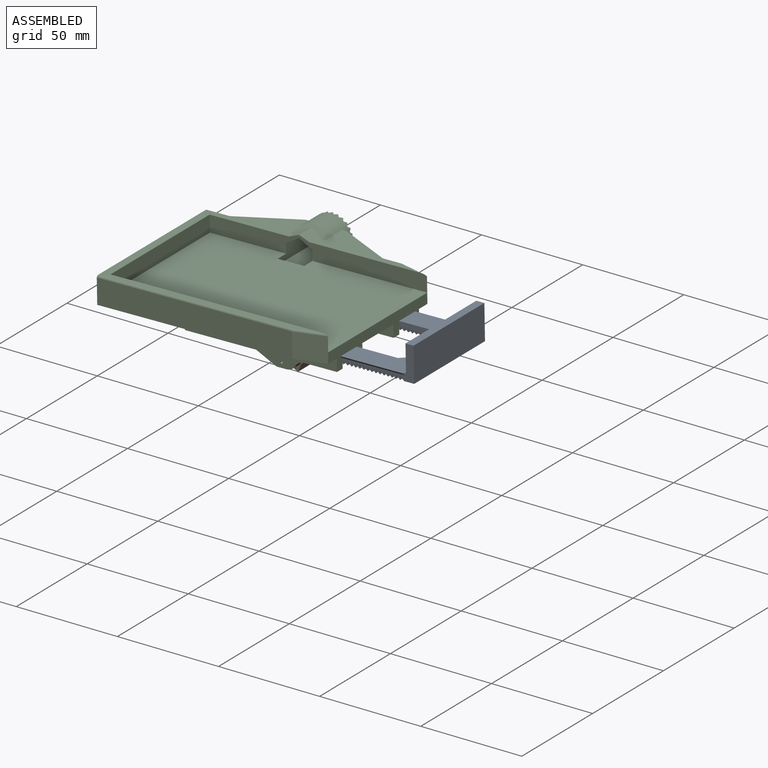
[diagram: assembled view]
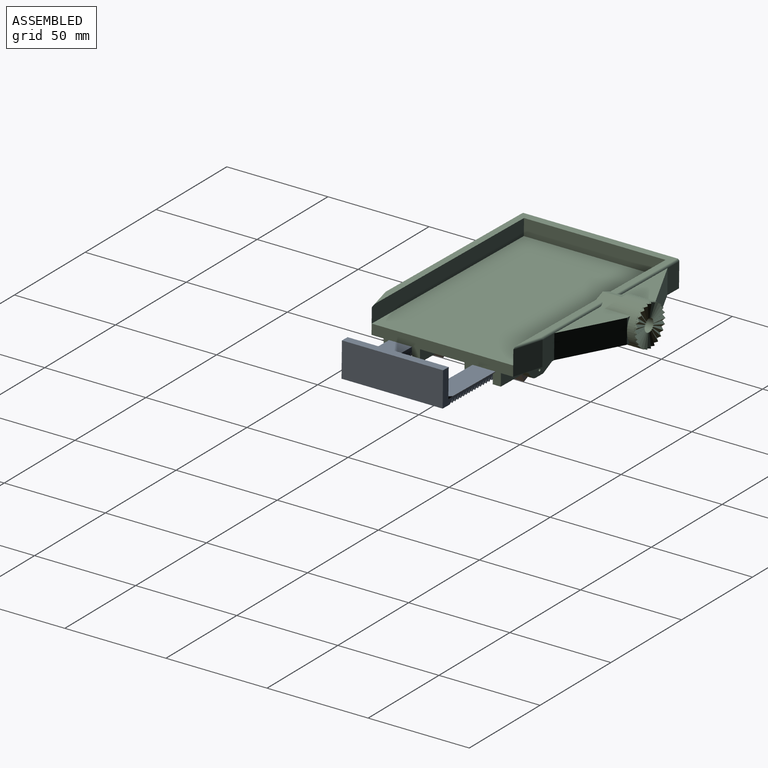
[diagram: assembled view, second angle]
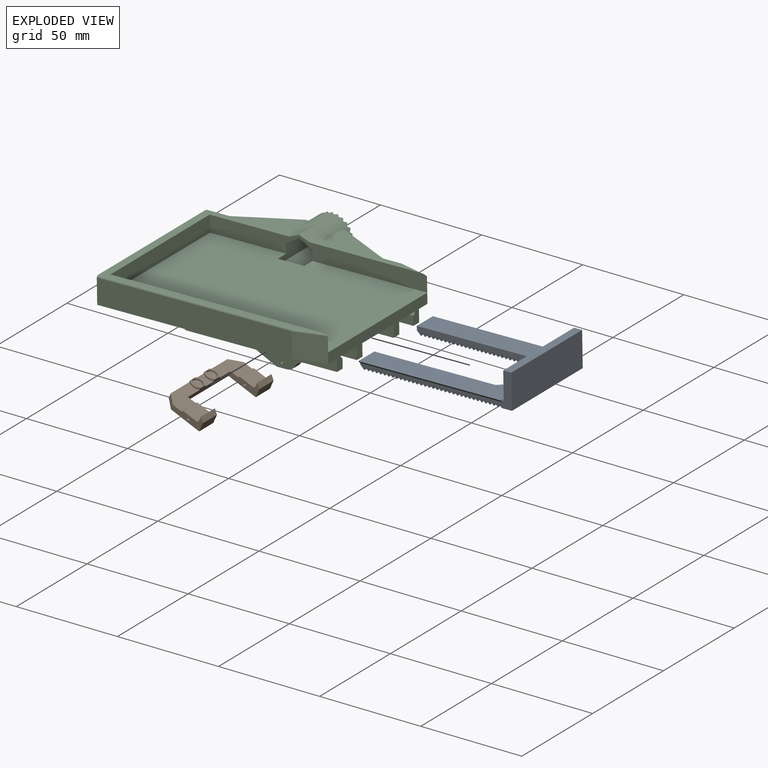
[diagram: exploded view]
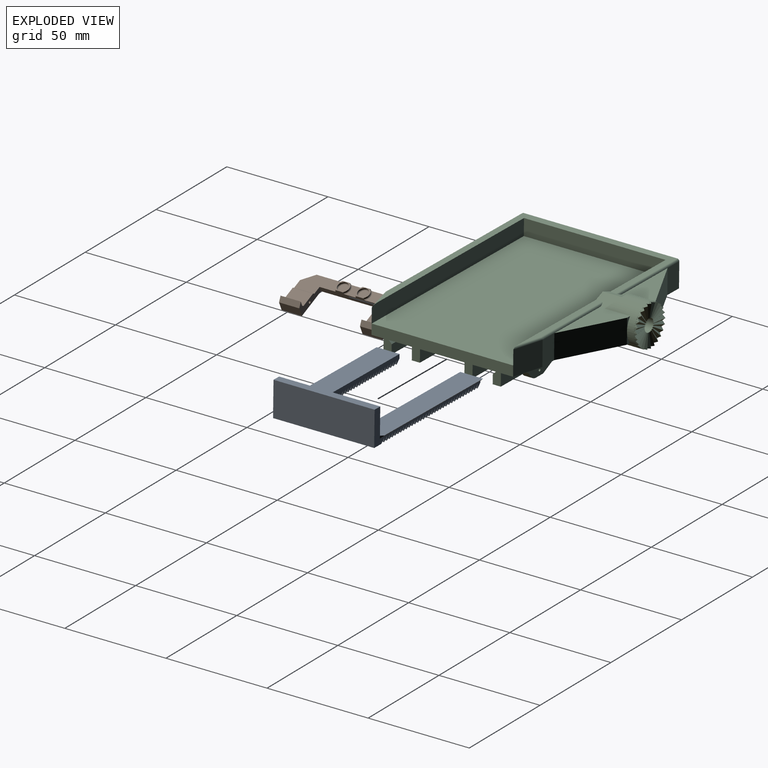
[diagram: exploded view, second angle]
ASSEMBLY  parts=3 mates=2
PART A: 156 faces, bbox 75x52.6x17 mm
  f0: plane 71x21.3mm, normal (0,0,1), area 856.5mm2, adj f1,f3,f10,f11,f13,f155
  f1: plane 71x1.3mm, normal (0,-0.71,-0.71), area 129.3mm2, adj f0,f3,f6,f155
  f2: plane 71x21.3mm, normal (0,0,1), area 856.5mm2, adj f5,f8,f9,f13,f153,f154
  f3: plane 11.3x2mm, normal (-1,0,0), area 20.8mm2, adj f0,f1,f6,f11,f146
  f4: plane 50x5mm, normal (0,0,-1), area 239.1mm2, adj f6,f7,f9,f10,f12,f13,f148,f149
  f5: plane 11.3x2mm, normal (-1,0,0), area 20.8mm2, adj f2,f7,f8,f151,f153
  f6: plane 75x17mm, normal (0,-1,0), area 189.7mm2, adj f1,f3,f4,f12,f13,f14,f15,f16
  f7: plane 75x17mm, normal (0,1,0), area 189.7mm2, adj f4,f5,f12,f13,f48,f49,f50,f51
  f8: plane 60x4mm, normal (0,-1,0), area 180mm2, adj f2,f5,f9,f52,f53,f54,f55,f56
  f9: plane 11x10mm, normal (-0.67,-0.74,0), area 45.9mm2, adj f2,f4,f8,f13,f48,f49,f50,f51
  f10: plane 11x10mm, normal (-0.67,0.74,0), area 45.9mm2, adj f0,f4,f11,f13,f44,f45,f46,f47
  f11: plane 60x4mm, normal (0,1,0), area 180mm2, adj f0,f3,f10,f14,f15,f16,f17,f18
  f12: plane 50x17mm, normal (1,0,0), area 850mm2, adj f4,f6,f7,f152
  f13: plane 50x17mm, normal (-1,0,0), area 690mm2, adj f0,f2,f4,f6,f7,f9,f10,f152
  f14: plane 10x2mm, normal (1,0,0), area 20mm2, adj f6,f11,f15,f146
  f15: plane 10x2mm, normal (-0.71,0,-0.71), area 28.3mm2, adj f6,f11,f14,f142
  f16: plane 10x2mm, normal (1,0,0), area 20mm2, adj f6,f11,f17,f143
  f17: plane 10x2mm, normal (-0.71,0,-0.71), area 28.3mm2, adj f6,f11,f16,f138
  f18: plane 10x2mm, normal (1,0,0), area 20mm2, adj f6,f11,f19,f139
  f19: plane 10x2mm, normal (-0.71,0,-0.71), area 28.3mm2, adj f6,f11,f18,f134
  f20: plane 10x2mm, normal (1,0,0), area 20mm2, adj f6,f11,f21,f135
  f21: plane 10x2mm, normal (-0.71,0,-0.71), area 28.3mm2, adj f6,f11,f20,f130
  f22: plane 10x2mm, normal (1,0,0), area 20mm2, adj f6,f11,f23,f131
  f23: plane 10x2mm, normal (-0.71,0,-0.71), area 28.3mm2, adj f6,f11,f22,f126
  f24: plane 10x2mm, normal (1,0,0), area 20mm2, adj f6,f11,f25,f127
  f25: plane 10x2mm, normal (-0.71,0,-0.71), area 28.3mm2, adj f6,f11,f24,f122
  f26: plane 10x2mm, normal (1,0,0), area 20mm2, adj f6,f11,f27,f123
  f27: plane 10x2mm, normal (-0.71,0,-0.71), area 28.3mm2, adj f6,f11,f26,f118
  f28: plane 10x2mm, normal (1,0,0), area 20mm2, adj f6,f11,f29,f119
  f29: plane 10x2mm, normal (-0.71,0,-0.71), area 28.3mm2, adj f6,f11,f28,f114
  f30: plane 10x2mm, normal (1,0,0), area 20mm2, adj f6,f11,f31,f115
  f31: plane 10x2mm, normal (-0.71,0,-0.71), area 28.3mm2, adj f6,f11,f30,f110
  f32: plane 10x2mm, normal (1,0,0), area 20mm2, adj f6,f11,f33,f111
  f33: plane 10x2mm, normal (-0.71,0,-0.71), area 28.3mm2, adj f6,f11,f32,f106
  f34: plane 10x2mm, normal (1,0,0), area 20mm2, adj f6,f11,f35,f107
  f35: plane 10x2mm, normal (-0.71,0,-0.71), area 28.3mm2, adj f6,f11,f34,f102
  f36: plane 10x2mm, normal (1,0,0), area 20mm2, adj f6,f11,f37,f103
  f37: plane 10x2mm, normal (-0.71,0,-0.71), area 28.3mm2, adj f6,f11,f36,f98
  f38: plane 10x2mm, normal (1,0,0), area 20mm2, adj f6,f11,f39,f99
  f39: plane 10x2mm, normal (-0.71,0,-0.71), area 28.3mm2, adj f6,f11,f38,f94
  f40: plane 10x2mm, normal (1,0,0), area 20mm2, adj f6,f11,f41,f95
  f41: plane 10x2mm, normal (-0.71,0,-0.71), area 28.3mm2, adj f6,f11,f40,f90
  f42: plane 10x2mm, normal (1,0,0), area 20mm2, adj f6,f11,f43,f91
  f43: plane 10x2mm, normal (-0.71,0,-0.71), area 28.3mm2, adj f6,f11,f42,f86
  f44: plane 11.82x2mm, normal (1,0,0), area 23.6mm2, adj f6,f10,f45,f87
  f45: plane 13.64x2mm, normal (-0.71,0,-0.71), area 36mm2, adj f6,f10,f44,f82
  f46: plane 15.45x2mm, normal (1,0,0), area 30.9mm2, adj f6,f10,f47,f83
  f47: plane 17.27x2mm, normal (-0.71,0,-0.71), area 46.3mm2, adj f6,f10,f46,f147
  f48: plane 13.64x2mm, normal (-0.71,0,-0.71), area 36mm2, adj f7,f9,f49,f85
  f49: plane 11.82x2mm, normal (1,0,0), area 23.6mm2, adj f7,f9,f48,f88
  f50: plane 17.27x2mm, normal (-0.71,0,-0.71), area 46.3mm2, adj f7,f9,f51,f150
  f51: plane 15.45x2mm, normal (1,0,0), area 30.9mm2, adj f7,f9,f50,f84
  f52: plane 10x2mm, normal (-0.71,0,-0.71), area 28.3mm2, adj f7,f8,f53,f145
  f53: plane 10x2mm, normal (1,0,0), area 20mm2, adj f7,f8,f52,f151
  f54: plane 10x2mm, normal (-0.71,0,-0.71), area 28.3mm2, adj f7,f8,f55,f141
  f55: plane 10x2mm, normal (1,0,0), area 20mm2, adj f7,f8,f54,f144
  f56: plane 10x2mm, normal (-0.71,0,-0.71), area 28.3mm2, adj f7,f8,f57,f137
  f57: plane 10x2mm, normal (1,0,0), area 20mm2, adj f7,f8,f56,f140
  f58: plane 10x2mm, normal (-0.71,0,-0.71), area 28.3mm2, adj f7,f8,f59,f133
  f59: plane 10x2mm, normal (1,0,0), area 20mm2, adj f7,f8,f58,f136
  f60: plane 10x2mm, normal (-0.71,0,-0.71), area 28.3mm2, adj f7,f8,f61,f129
  f61: plane 10x2mm, normal (1,0,0), area 20mm2, adj f7,f8,f60,f132
  f62: plane 10x2mm, normal (-0.71,0,-0.71), area 28.3mm2, adj f7,f8,f63,f125
  f63: plane 10x2mm, normal (1,0,0), area 20mm2, adj f7,f8,f62,f128
  f64: plane 10x2mm, normal (-0.71,0,-0.71), area 28.3mm2, adj f7,f8,f65,f121
  f65: plane 10x2mm, normal (1,0,0), area 20mm2, adj f7,f8,f64,f124
  f66: plane 10x2mm, normal (-0.71,0,-0.71), area 28.3mm2, adj f7,f8,f67,f117
  f67: plane 10x2mm, normal (1,0,0), area 20mm2, adj f7,f8,f66,f120
  f68: plane 10x2mm, normal (-0.71,0,-0.71), area 28.3mm2, adj f7,f8,f69,f113
  f69: plane 10x2mm, normal (1,0,0), area 20mm2, adj f7,f8,f68,f116
  f70: plane 10x2mm, normal (-0.71,0,-0.71), area 28.3mm2, adj f7,f8,f71,f109
  f71: plane 10x2mm, normal (1,0,0), area 20mm2, adj f7,f8,f70,f112
  f72: plane 10x2mm, normal (-0.71,0,-0.71), area 28.3mm2, adj f7,f8,f73,f105
  f73: plane 10x2mm, normal (1,0,0), area 20mm2, adj f7,f8,f72,f108
  f74: plane 10x2mm, normal (-0.71,0,-0.71), area 28.3mm2, adj f7,f8,f75,f101
  f75: plane 10x2mm, normal (1,0,0), area 20mm2, adj f7,f8,f74,f104
  f76: plane 10x2mm, normal (-0.71,0,-0.71), area 28.3mm2, adj f7,f8,f77,f97
  f77: plane 10x2mm, normal (1,0,0), area 20mm2, adj f7,f8,f76,f100
  f78: plane 10x2mm, normal (-0.71,0,-0.71), area 28.3mm2, adj f7,f8,f79,f93
  f79: plane 10x2mm, normal (1,0,0), area 20mm2, adj f7,f8,f78,f96
  f80: plane 10x2mm, normal (-0.71,0,-0.71), area 28.3mm2, adj f7,f8,f81,f89
  f81: plane 10x2mm, normal (1,0,0), area 20mm2, adj f7,f8,f80,f92
  f82: plane 13.64x2mm, normal (1,0,0), area 27.3mm2, adj f6,f10,f45,f83
  f83: plane 15.45x2mm, normal (-0.71,0,-0.71), area 41.1mm2, adj f6,f10,f46,f82
  f84: plane 15.45x2mm, normal (-0.71,0,-0.71), area 41.1mm2, adj f7,f9,f51,f85
  f85: plane 13.64x2mm, normal (1,0,0), area 27.3mm2, adj f7,f9,f48,f84
  f86: plane 10x2mm, normal (1,0,0), area 20mm2, adj f6,f11,f43,f87
  f87: plane 11.82x2mm, normal (-0.71,0,-0.71), area 30.9mm2, adj f6,f10,f44,f86
  f88: plane 11.82x2mm, normal (-0.71,0,-0.71), area 30.9mm2, adj f7,f9,f49,f89
  f89: plane 10x2mm, normal (1,0,0), area 20mm2, adj f7,f8,f80,f88
  f90: plane 10x2mm, normal (1,0,0), area 20mm2, adj f6,f11,f41,f91
  f91: plane 10x2mm, normal (-0.71,0,-0.71), area 28.3mm2, adj f6,f11,f42,f90
  f92: plane 10x2mm, normal (-0.71,0,-0.71), area 28.3mm2, adj f7,f8,f81,f93
  f93: plane 10x2mm, normal (1,0,0), area 20mm2, adj f7,f8,f78,f92
  f94: plane 10x2mm, normal (1,0,0), area 20mm2, adj f6,f11,f39,f95
  f95: plane 10x2mm, normal (-0.71,0,-0.71), area 28.3mm2, adj f6,f11,f40,f94
  f96: plane 10x2mm, normal (-0.71,0,-0.71), area 28.3mm2, adj f7,f8,f79,f97
  f97: plane 10x2mm, normal (1,0,0), area 20mm2, adj f7,f8,f76,f96
  f98: plane 10x2mm, normal (1,0,0), area 20mm2, adj f6,f11,f37,f99
  f99: plane 10x2mm, normal (-0.71,0,-0.71), area 28.3mm2, adj f6,f11,f38,f98
  f100: plane 10x2mm, normal (-0.71,0,-0.71), area 28.3mm2, adj f7,f8,f77,f101
  f101: plane 10x2mm, normal (1,0,0), area 20mm2, adj f7,f8,f74,f100
  f102: plane 10x2mm, normal (1,0,0), area 20mm2, adj f6,f11,f35,f103
  f103: plane 10x2mm, normal (-0.71,0,-0.71), area 28.3mm2, adj f6,f11,f36,f102
  f104: plane 10x2mm, normal (-0.71,0,-0.71), area 28.3mm2, adj f7,f8,f75,f105
  f105: plane 10x2mm, normal (1,0,0), area 20mm2, adj f7,f8,f72,f104
  f106: plane 10x2mm, normal (1,0,0), area 20mm2, adj f6,f11,f33,f107
  f107: plane 10x2mm, normal (-0.71,0,-0.71), area 28.3mm2, adj f6,f11,f34,f106
  f108: plane 10x2mm, normal (-0.71,0,-0.71), area 28.3mm2, adj f7,f8,f73,f109
  f109: plane 10x2mm, normal (1,0,0), area 20mm2, adj f7,f8,f70,f108
  f110: plane 10x2mm, normal (1,0,0), area 20mm2, adj f6,f11,f31,f111
  f111: plane 10x2mm, normal (-0.71,0,-0.71), area 28.3mm2, adj f6,f11,f32,f110
  f112: plane 10x2mm, normal (-0.71,0,-0.71), area 28.3mm2, adj f7,f8,f71,f113
  f113: plane 10x2mm, normal (1,0,0), area 20mm2, adj f7,f8,f68,f112
  f114: plane 10x2mm, normal (1,0,0), area 20mm2, adj f6,f11,f29,f115
  f115: plane 10x2mm, normal (-0.71,0,-0.71), area 28.3mm2, adj f6,f11,f30,f114
  f116: plane 10x2mm, normal (-0.71,0,-0.71), area 28.3mm2, adj f7,f8,f69,f117
  f117: plane 10x2mm, normal (1,0,0), area 20mm2, adj f7,f8,f66,f116
  f118: plane 10x2mm, normal (1,0,0), area 20mm2, adj f6,f11,f27,f119
  f119: plane 10x2mm, normal (-0.71,0,-0.71), area 28.3mm2, adj f6,f11,f28,f118
  f120: plane 10x2mm, normal (-0.71,0,-0.71), area 28.3mm2, adj f7,f8,f67,f121
  f121: plane 10x2mm, normal (1,0,0), area 20mm2, adj f7,f8,f64,f120
  f122: plane 10x2mm, normal (1,0,0), area 20mm2, adj f6,f11,f25,f123
  f123: plane 10x2mm, normal (-0.71,0,-0.71), area 28.3mm2, adj f6,f11,f26,f122
  f124: plane 10x2mm, normal (-0.71,0,-0.71), area 28.3mm2, adj f7,f8,f65,f125
  f125: plane 10x2mm, normal (1,0,0), area 20mm2, adj f7,f8,f62,f124
  f126: plane 10x2mm, normal (1,0,0), area 20mm2, adj f6,f11,f23,f127
  f127: plane 10x2mm, normal (-0.71,0,-0.71), area 28.3mm2, adj f6,f11,f24,f126
  f128: plane 10x2mm, normal (-0.71,0,-0.71), area 28.3mm2, adj f7,f8,f63,f129
  f129: plane 10x2mm, normal (1,0,0), area 20mm2, adj f7,f8,f60,f128
  f130: plane 10x2mm, normal (1,0,0), area 20mm2, adj f6,f11,f21,f131
  f131: plane 10x2mm, normal (-0.71,0,-0.71), area 28.3mm2, adj f6,f11,f22,f130
  f132: plane 10x2mm, normal (-0.71,0,-0.71), area 28.3mm2, adj f7,f8,f61,f133
  f133: plane 10x2mm, normal (1,0,0), area 20mm2, adj f7,f8,f58,f132
  f134: plane 10x2mm, normal (1,0,0), area 20mm2, adj f6,f11,f19,f135
  f135: plane 10x2mm, normal (-0.71,0,-0.71), area 28.3mm2, adj f6,f11,f20,f134
  f136: plane 10x2mm, normal (-0.71,0,-0.71), area 28.3mm2, adj f7,f8,f59,f137
  f137: plane 10x2mm, normal (1,0,0), area 20mm2, adj f7,f8,f56,f136
  f138: plane 10x2mm, normal (1,0,0), area 20mm2, adj f6,f11,f17,f139
  f139: plane 10x2mm, normal (-0.71,0,-0.71), area 28.3mm2, adj f6,f11,f18,f138
  f140: plane 10x2mm, normal (-0.71,0,-0.71), area 28.3mm2, adj f7,f8,f57,f141
  f141: plane 10x2mm, normal (1,0,0), area 20mm2, adj f7,f8,f54,f140
  f142: plane 10x2mm, normal (1,0,0), area 20mm2, adj f6,f11,f15,f143
  f143: plane 10x2mm, normal (-0.71,0,-0.71), area 28.3mm2, adj f6,f11,f16,f142
  f144: plane 10x2mm, normal (-0.71,0,-0.71), area 28.3mm2, adj f7,f8,f55,f145
  f145: plane 10x2mm, normal (1,0,0), area 20mm2, adj f7,f8,f52,f144
  f146: plane 10x2mm, normal (-0.71,0,-0.71), area 28.3mm2, adj f3,f6,f11,f14
  f147: plane 17.27x2mm, normal (1,0,0), area 34.5mm2, adj f6,f10,f47,f148
  f148: plane 19.09x2mm, normal (-0.71,0,-0.71), area 51.4mm2, adj f4,f6,f10,f147
  f149: plane 19.09x2mm, normal (-0.71,0,-0.71), area 51.4mm2, adj f4,f7,f9,f150
  f150: plane 17.27x2mm, normal (1,0,0), area 34.5mm2, adj f7,f9,f50,f149
  f151: plane 10x2mm, normal (-0.71,0,-0.71), area 28.3mm2, adj f5,f7,f8,f53
  f152: plane 50x4mm, normal (0,0,1), area 200mm2, adj f6,f7,f12,f13
  f153: plane 71x1.3mm, normal (0,0.71,-0.71), area 129.3mm2, adj f2,f5,f7,f154
  f154: plane 1.3x1.3mm, normal (0.71,0.71,0), area 1.2mm2, adj f2,f7,f153
  f155: plane 1.3x1.3mm, normal (0.71,-0.71,0), area 1.2mm2, adj f0,f1,f6
PART B: 58 faces, bbox 50x20.3x6.5 mm
  f0: plane 17.75x9.5mm, normal (0,0,-1), area 120.8mm2, adj f2,f8,f13,f14,f42,f43,f44,f48
  f1: plane 17.75x9.5mm, normal (0,0,-1), area 120.8mm2, adj f3,f7,f13,f14,f36,f37,f38,f47
  f2: plane 14.75x6.5mm, normal (-1,0,0), area 48.2mm2, adj f0,f9,f10,f11,f13,f50,f54,f55
  f3: plane 14.75x6.5mm, normal (1,0,0), area 48.2mm2, adj f1,f4,f5,f6,f13,f49,f51,f52
  f4: plane 10x4.5mm, normal (0,-1,0), area 45mm2, adj f3,f6,f7,f57
  f5: plane 10x2.5mm, normal (0,1,0), area 25mm2, adj f3,f6,f7,f52
  f6: plane 10x2mm, normal (0,-0.71,-0.71), area 28.3mm2, adj f3,f4,f5,f7
  f7: plane 15.25x6.5mm, normal (-1,0,0), area 49.4mm2, adj f1,f4,f5,f6,f47,f49,f51,f52
  f8: plane 15.25x6.5mm, normal (1,0,0), area 49.4mm2, adj f0,f9,f10,f11,f48,f50,f54,f55
  f9: plane 10x4.5mm, normal (0,-1,0), area 45mm2, adj f2,f8,f11,f57
  f10: plane 10x2.5mm, normal (0,1,0), area 25mm2, adj f2,f8,f11,f55
  f11: plane 10x2mm, normal (0,-0.71,-0.71), area 28.3mm2, adj f2,f8,f9,f10
  f12: plane 5.5x5.5mm, normal (0,0,-1), area 21.5mm2, adj f13,f14,f33,f34,f35,f39,f40,f41
  f13: plane 30x3.5mm, normal (0,-1,0), area 83.1mm2, adj f0,f1,f2,f3,f12,f15,f20,f22
  f14: plane 40x3.5mm, normal (0,1,0), area 108.1mm2, adj f0,f1,f12,f17,f18,f22,f28,f29
  f15: plane 0.75x0.25mm, normal (-1,0,0), area 0.2mm2, adj f13,f16,f22,f38
  f16: cylinder r=3.2mm len=5mm, axis (0,0,1), area 4.3mm2, adj f15,f17,f22,f37
  f17: plane 0.75x0.25mm, normal (-1,0,0), area 0.2mm2, adj f14,f16,f22,f36
  f18: plane 0.75x0.25mm, normal (1,0,0), area 0.2mm2, adj f14,f19,f22,f33
  f19: cylinder r=3.2mm len=5mm, axis (0,0,1), area 4.3mm2, adj f18,f20,f22,f34
  f20: plane 0.75x0.25mm, normal (1,0,0), area 0.2mm2, adj f13,f19,f22,f35
  f21: cylinder r=2.5mm len=5mm, axis (0,0,1), area 11.8mm2, adj f22,f46
  f22: plane 6.4x5.5mm, normal (0,0,-1), area 10.7mm2, adj f13,f14,f15,f16,f17,f18,f19,f20
  f23: plane 4.5x4.5mm, normal (0,0,-1), area 15.9mm2, adj f46
  f24: cylinder r=3.2mm len=5mm, axis (0,0,1), area 4.3mm2, adj f25,f29,f31,f43
  f25: plane 0.75x0.25mm, normal (1,0,0), area 0.2mm2, adj f13,f24,f31,f44
  f26: plane 0.75x0.25mm, normal (-1,0,0), area 0.2mm2, adj f13,f27,f31,f41
  f27: cylinder r=3.2mm len=5mm, axis (0,0,1), area 4.3mm2, adj f26,f28,f31,f40
  f28: plane 0.75x0.25mm, normal (-1,0,0), area 0.2mm2, adj f14,f27,f31,f39
  f29: plane 0.75x0.25mm, normal (1,0,0), area 0.2mm2, adj f14,f24,f31,f42
  f30: cylinder r=2.5mm len=5mm, axis (0,0,1), area 11.8mm2, adj f31,f45
  f31: plane 6.4x5.5mm, normal (0,0,-1), area 10.7mm2, adj f13,f14,f24,f25,f26,f27,f28,f29
  f32: plane 4.5x4.5mm, normal (0,0,-1), area 15.9mm2, adj f45
  f33: plane 0.25x0.25mm, normal (0.71,0,-0.71), area 0.1mm2, adj f12,f14,f18,f34
  f34: cone r=3.45mm half-angle=45deg, axis (0,0,1), area 2.1mm2, adj f12,f19,f33,f35
  f35: plane 0.25x0.25mm, normal (0.71,0,-0.71), area 0.1mm2, adj f12,f13,f20,f34
  f36: plane 0.25x0.25mm, normal (-0.71,0,-0.71), area 0.1mm2, adj f1,f14,f17,f37
  f37: cone r=3.2mm half-angle=45deg, axis (0,0,1), area 2.1mm2, adj f1,f16,f36,f38
  f38: plane 0.25x0.25mm, normal (-0.71,0,-0.71), area 0.1mm2, adj f1,f13,f15,f37
  f39: plane 0.25x0.25mm, normal (-0.71,0,-0.71), area 0.1mm2, adj f12,f14,f28,f40
  f40: cone r=3.2mm half-angle=45deg, axis (0,0,1), area 2.1mm2, adj f12,f27,f39,f41
  f41: plane 0.25x0.25mm, normal (-0.71,0,-0.71), area 0.1mm2, adj f12,f13,f26,f40
  f42: plane 0.25x0.25mm, normal (0.71,0,-0.71), area 0.1mm2, adj f0,f14,f29,f43
  f43: cone r=3.45mm half-angle=45deg, axis (0,0,1), area 2.1mm2, adj f0,f24,f42,f44
  f44: plane 0.25x0.25mm, normal (0.71,0,-0.71), area 0.1mm2, adj f0,f13,f25,f43
  f45: cone r=2.25mm half-angle=45deg, axis (0,0,-1), area 5.3mm2, adj f30,f32
  f46: cone r=2.25mm half-angle=45deg, axis (0,0,-1), area 5.3mm2, adj f21,f23
  f47: plane 5x5mm, normal (-0.71,0.71,0), area 17.7mm2, adj f1,f7,f14,f57
  f48: plane 5x5mm, normal (0.71,0.71,0), area 17.7mm2, adj f0,f8,f14,f57
  f49: cylinder r=0.64mm len=10mm, axis (1,0,0), area 39.9mm2, adj f3,f7
  f50: cylinder r=0.64mm len=10mm, axis (-1,0,0), area 39.9mm2, adj f2,f8
  f51: plane 10x7.25mm, normal (0,0,-1), area 72.5mm2, adj f3,f7,f52,f53
  f52: plane 10x0.75mm, normal (0,0.71,-0.71), area 10.6mm2, adj f3,f5,f7,f51
  f53: plane 10x0.75mm, normal (0,0.71,-0.71), area 10.6mm2, adj f1,f3,f7,f51
  f54: plane 10x7.25mm, normal (0,0,-1), area 72.5mm2, adj f2,f8,f55,f56
  f55: plane 10x0.75mm, normal (0,0.71,-0.71), area 10.6mm2, adj f2,f8,f10,f54
  f56: plane 10x0.75mm, normal (0,0.71,-0.71), area 10.6mm2, adj f0,f2,f8,f54
  f57: plane 50x20.25mm, normal (0,0,1), area 545mm2, adj f2,f3,f4,f7,f8,f9,f13,f14
PART C: 189 faces, bbox 111.5x98x27 mm
  f0: plane 81x11mm, normal (0,-1,0), area 445.9mm2, adj f2,f7,f11,f14,f49,f162,f175,f182
  f1: plane 81x11mm, normal (0,1,0), area 445.9mm2, adj f3,f5,f14,f49,f57,f161,f176,f179
  f2: plane 4x4mm, normal (-0.71,0,-0.71), area 22.6mm2, adj f0,f4,f14,f162
  f3: plane 4x4mm, normal (-0.71,0,-0.71), area 22.6mm2, adj f1,f14,f56,f161
  f4: plane 81x11mm, normal (0,1,0), area 445.9mm2, adj f2,f7,f11,f14,f49,f162,f175,f182
  f5: plane 5x4mm, normal (0,0,-1), area 20mm2, adj f1,f56,f176,f183
  f6: plane 5x4mm, normal (0,0,-1), area 20mm2, adj f51,f59,f171,f178
  f7: plane 5x4mm, normal (0,0,-1), area 20mm2, adj f0,f4,f175,f184
  f8: plane 35x4mm, normal (0,0,-1), area 140mm2, adj f51,f59,f171,f174
  f9: plane 5x4mm, normal (0,0,-1), area 20mm2, adj f15,f50,f172,f177
  f10: plane 16.34x4mm, normal (0,0,-1), area 65.4mm2, adj f15,f49,f50,f181
  f11: plane 16.34x4mm, normal (0,0,-1), area 65.4mm2, adj f0,f4,f49,f182
  f12: plane 107.5x70mm, normal (0,0,1), area 7446.4mm2, adj f13,f16,f20,f49,f153,f154,f160
  f13: plane 107.5x8mm, normal (0,1,0), area 859.2mm2, adj f12,f26,f53,f54,f160
  f14: plane 111.5x93mm, normal (0,0,-1), area 7079.5mm2, adj f0,f1,f2,f3,f4,f15,f28,f43
  f15: plane 81x11mm, normal (0,1,0), area 493.7mm2, adj f9,f10,f14,f24,f43,f49,f58,f172
  f16: plane 13.1x6.56mm, normal (0,1,0), area 61.2mm2, adj f12,f149,f150,f153,f154
  f17: cylinder r=1mm len=43.27mm, axis (1,0,0), area 66.6mm2, adj f23,f26,f147,f148,f156,f158
  f18: cylinder r=1mm len=43.27mm, axis (1,0,0), area 66.5mm2, adj f19,f22,f48,f55,f157,f159
  f19: plane 32.3x15mm, normal (0,0,1), area 255.7mm2, adj f18,f25,f43,f44,f64,f159
  f20: plane 107.5x10mm, normal (0,-1,0), area 781.7mm2, adj f12,f22,f26,f52,f55,f151,f152,f153
  f21: plane 15.13x13.1mm, normal (0,-1,0), area 117.4mm2, adj f149,f150,f151,f152,f153,f154,f155
  f22: plane 54.39x3mm, normal (0,0,1), area 146.3mm2, adj f18,f20,f55,f157
  f23: plane 32.3x15mm, normal (0,0,1), area 255.7mm2, adj f17,f25,f43,f46,f63,f158
  f24: plane 55.25x25mm, normal (0,0,-1), area 777.5mm2, adj f15,f43,f45,f48,f49,f52,f64
  f25: plane 16x4mm, normal (0,-0.71,0.71), area 31.7mm2, adj f19,f23,f43,f156,f157,f158,f159
  f26: plane 107.62x76mm, normal (0,0,1), area 715.8mm2, adj f13,f17,f20,f27,f54,f148,f156,f160
  f27: cylinder r=1mm len=96.5mm, axis (-1,0,0), area 151.5mm2, adj f26,f28,f54,f148
  f28: plane 96.5x12mm, normal (0,-1,0), area 1158mm2, adj f14,f27,f53,f148
  f29: plane 2.41x1.5mm, normal (0.38,0,-0.92), area 2.2mm2, adj f30,f31,f94,f143,f144
  f30: plane 2.59x1.5mm, normal (0.13,0,-0.99), area 2.2mm2, adj f29,f42,f66,f141,f142
  f31: plane 2.07x1.59mm, normal (0.61,0,-0.79), area 2.2mm2, adj f29,f32,f79,f135,f136
  f32: plane 2.07x1.59mm, normal (0.79,0,-0.61), area 2.2mm2, adj f31,f33,f95,f133,f134
  f33: plane 2.41x1.5mm, normal (0.92,0,-0.38), area 2.2mm2, adj f32,f34,f80,f127,f128
  f34: plane 2.59x1.5mm, normal (0.99,0,-0.13), area 2.2mm2, adj f33,f35,f96,f125,f126
  f35: plane 2.59x1.5mm, normal (0.99,0,0.13), area 2.2mm2, adj f34,f36,f81,f119,f120
  f36: plane 2.41x1.5mm, normal (0.92,0,0.38), area 2.2mm2, adj f35,f37,f97,f117,f118
  f37: plane 2.07x1.59mm, normal (0.79,0,0.61), area 2.2mm2, adj f36,f38,f65,f111,f112
  f38: plane 2.07x1.59mm, normal (0.61,0,0.79), area 2.2mm2, adj f37,f39,f98,f109,f110
  f39: plane 2.41x1.5mm, normal (0.38,0,0.92), area 2.2mm2, adj f38,f82,f99,f103,f104
  f40: plane 6.88x1.31mm, normal (0.7,0.71,-0.09), area 8.2mm2, adj f41,f99,f140,f155
  f41: plane 6.79x2.18mm, normal (-0.7,0.71,0.09), area 8.2mm2, adj f40,f99,f104,f155
  f42: plane 2.59x1.5mm, normal (-0.13,0,-0.99), area 2.2mm2, adj f30,f67,f93,f101,f102
  f43: cylinder r=10mm len=28.5mm, axis (0,1,0), area 866.7mm2, adj f14,f15,f19,f23,f24,f25,f44,f45
  f44: plane 6x2mm, normal (0,1,0), area 3.8mm2, adj f19,f43,f64
  f45: plane 6x2mm, normal (0,1,0), area 3.8mm2, adj f24,f43,f64
  f46: plane 6x2mm, normal (0,1,0), area 3.8mm2, adj f23,f43,f63
  f47: plane 6x2mm, normal (0,1,0), area 3.8mm2, adj f14,f43,f63
  f48: plane 12x8.25mm, normal (0,1,0), area 99mm2, adj f18,f24,f52,f64
  f49: plane 70x11mm, normal (1,0,0), area 443.8mm2, adj f0,f1,f4,f10,f11,f12,f14,f15
  f50: plane 79.5x9.5mm, normal (0,-1,0), area 418mm2, adj f9,f10,f49,f58,f62,f172,f173,f177
  f51: plane 79.5x9.5mm, normal (0,1,0), area 418mm2, adj f6,f8,f49,f60,f61,f171,f174,f178
  f52: plane 15x12mm, normal (0.26,0.97,0), area 186.3mm2, adj f20,f24,f48,f49,f55
  f53: plane 15x12mm, normal (0.26,-0.97,0), area 186.3mm2, adj f13,f14,f28,f49,f54
  f54: cylinder r=1mm len=15.26mm, axis (-0.97,-0.26,0), area 22.1mm2, adj f13,f26,f27,f53
  f55: cylinder r=1mm len=15.26mm, axis (0.97,-0.26,0), area 22.1mm2, adj f18,f20,f22,f52
  f56: plane 81x11mm, normal (0,-1,0), area 445.9mm2, adj f3,f5,f14,f49,f57,f161,f176,f179
  f57: plane 16.34x4mm, normal (0,0,-1), area 65.4mm2, adj f1,f49,f56,f179
  f58: plane 35x4mm, normal (0,0,-1), area 140mm2, adj f15,f50,f172,f173
  f59: plane 81x11mm, normal (0,-1,0), area 538.4mm2, adj f6,f8,f14,f49,f60,f171,f174,f178
  f60: plane 16.34x4mm, normal (0,0,-1), area 65.4mm2, adj f49,f51,f59,f180
  f61: plane 81x1.5mm, normal (0,0.71,0.71), area 170.2mm2, adj f14,f49,f51,f174
  f62: plane 81x1.5mm, normal (0,-0.71,0.71), area 170.2mm2, adj f14,f49,f50,f173
  f63: plane 30x15mm, normal (-0.45,0.89,0), area 402.5mm2, adj f14,f23,f46,f47,f147
  f64: plane 30x15mm, normal (0.45,0.89,0), area 402.5mm2, adj f19,f24,f44,f45,f48
  f65: plane 2.07x1.59mm, normal (0,1,0), area 0.1mm2, adj f37,f43
  f66: plane 2.59x0.34mm, normal (0,1,0), area 0.1mm2, adj f30,f43
  f67: plane 2.41x1.5mm, normal (-0.38,0,-0.92), area 2.2mm2, adj f42,f68,f91,f105,f106
  f68: plane 2.41x1mm, normal (0,1,0), area 0.1mm2, adj f43,f67
  f69: plane 2.07x1.59mm, normal (-0.79,0,-0.61), area 2.2mm2, adj f70,f89,f91,f113,f114
  f70: plane 2.07x1.59mm, normal (0,1,0), area 0.1mm2, adj f43,f69
  f71: plane 2.59x1.5mm, normal (-0.99,0,-0.13), area 2.2mm2, adj f72,f87,f89,f121,f122
  f72: plane 2.59x0.34mm, normal (0,1,0), area 0.1mm2, adj f43,f71
  f73: plane 2.41x1.5mm, normal (-0.92,0,0.38), area 2.2mm2, adj f74,f85,f87,f129,f130
  f74: plane 2.41x1mm, normal (0,1,0), area 0.1mm2, adj f43,f73
  f75: plane 2.07x1.59mm, normal (-0.61,0,0.79), area 2.2mm2, adj f76,f83,f85,f137,f138
  f76: plane 2.07x1.59mm, normal (0,1,0), area 0.1mm2, adj f43,f75
  f77: plane 2.59x1.5mm, normal (-0.13,0,0.99), area 2.2mm2, adj f78,f83,f99,f139,f140
  f78: plane 2.59x0.34mm, normal (0,1,0), area 0.1mm2, adj f43,f77
  f79: plane 2.07x1.59mm, normal (0,1,0), area 0.1mm2, adj f31,f43
  f80: plane 2.41x1mm, normal (0,1,0), area 0.1mm2, adj f33,f43
  f81: plane 2.59x0.34mm, normal (0,1,0), area 0.1mm2, adj f35,f43
  f82: plane 2.41x1mm, normal (0,1,0), area 0.1mm2, adj f39,f43
  f83: plane 2.41x1.5mm, normal (-0.38,0,0.92), area 2.2mm2, adj f75,f77,f84,f145,f146
  f84: plane 2.41x1mm, normal (0,1,0), area 0.1mm2, adj f43,f83
  f85: plane 2.07x1.59mm, normal (-0.79,0,0.61), area 2.2mm2, adj f73,f75,f86,f131,f132
  f86: plane 2.07x1.59mm, normal (0,1,0), area 0.1mm2, adj f43,f85
  f87: plane 2.59x1.5mm, normal (-0.99,0,0.13), area 2.2mm2, adj f71,f73,f88,f123,f124
  f88: plane 2.59x0.34mm, normal (0,1,0), area 0.1mm2, adj f43,f87
  f89: plane 2.41x1.5mm, normal (-0.92,0,-0.38), area 2.2mm2, adj f69,f71,f90,f115,f116
  f90: plane 2.41x1mm, normal (0,1,0), area 0.1mm2, adj f43,f89
  f91: plane 2.07x1.59mm, normal (-0.61,0,-0.79), area 2.2mm2, adj f67,f69,f92,f107,f108
  f92: plane 2.07x1.59mm, normal (0,1,0), area 0.1mm2, adj f43,f91
  f93: plane 2.59x0.34mm, normal (0,1,0), area 0.1mm2, adj f42,f43
  f94: plane 2.41x1mm, normal (0,1,0), area 0.1mm2, adj f29,f43
  f95: plane 2.07x1.59mm, normal (0,1,0), area 0.1mm2, adj f32,f43
  f96: plane 2.59x0.34mm, normal (0,1,0), area 0.1mm2, adj f34,f43
  f97: plane 2.41x1mm, normal (0,1,0), area 0.1mm2, adj f36,f43
  f98: plane 2.07x1.59mm, normal (0,1,0), area 0.1mm2, adj f38,f43
  f99: plane 2.59x1.5mm, normal (0.13,0,0.99), area 2.2mm2, adj f39,f40,f41,f77,f100
  f100: plane 2.59x0.34mm, normal (0,1,0), area 0.1mm2, adj f43,f99
  f101: plane 6.79x2.18mm, normal (0.7,0.71,-0.09), area 8.2mm2, adj f42,f102,f106,f155
  f102: plane 6.88x1.31mm, normal (-0.7,0.71,0.09), area 8.2mm2, adj f42,f101,f142,f155
  f103: plane 6.43x3.8mm, normal (-0.65,0.71,0.27), area 8.2mm2, adj f39,f104,f109,f155
  f104: plane 6.75x2.98mm, normal (0.65,0.71,-0.27), area 8.2mm2, adj f39,f41,f103,f155
  f105: plane 6.43x3.8mm, normal (0.65,0.71,-0.27), area 8.2mm2, adj f67,f106,f107,f155
  f106: plane 6.75x2.98mm, normal (-0.65,0.71,0.27), area 8.2mm2, adj f67,f101,f105,f155
  f107: plane 6.16x4.46mm, normal (-0.56,0.71,0.43), area 8.2mm2, adj f91,f105,f108,f155
  f108: plane 5.64x5.15mm, normal (0.56,0.71,-0.43), area 8.2mm2, adj f91,f107,f114,f155
  f109: plane 6.16x4.46mm, normal (0.56,0.71,-0.43), area 8.2mm2, adj f38,f103,f110,f155
  f110: plane 5.64x5.15mm, normal (-0.56,0.71,0.43), area 8.2mm2, adj f38,f109,f111,f155
  f111: plane 5.64x5.15mm, normal (0.43,0.71,-0.56), area 8.2mm2, adj f37,f110,f112,f155
  f112: plane 6.16x4.46mm, normal (-0.43,0.71,0.56), area 8.2mm2, adj f37,f111,f117,f155
  f113: plane 6.16x4.46mm, normal (0.43,0.71,-0.56), area 8.2mm2, adj f69,f114,f115,f155
  f114: plane 5.64x5.15mm, normal (-0.43,0.71,0.56), area 8.2mm2, adj f69,f108,f113,f155
  f115: plane 6.43x3.8mm, normal (-0.27,0.71,0.65), area 8.2mm2, adj f89,f113,f116,f155
  f116: plane 6.75x2.98mm, normal (0.27,0.71,-0.65), area 8.2mm2, adj f89,f115,f122,f155
  f117: plane 6.43x3.8mm, normal (0.27,0.71,-0.65), area 8.2mm2, adj f36,f112,f118,f155
  f118: plane 6.75x2.98mm, normal (-0.27,0.71,0.65), area 8.2mm2, adj f36,f117,f119,f155
  f119: plane 6.79x2.18mm, normal (0.09,0.71,-0.7), area 8.2mm2, adj f35,f118,f120,f155
  f120: plane 6.88x1.31mm, normal (-0.09,0.71,0.7), area 8.2mm2, adj f35,f119,f125,f155
  f121: plane 6.88x1.31mm, normal (0.09,0.71,-0.7), area 8.2mm2, adj f71,f122,f123,f155
  f122: plane 6.79x2.18mm, normal (-0.09,0.71,0.7), area 8.2mm2, adj f71,f116,f121,f155
  f123: plane 6.88x1.31mm, normal (0.09,0.71,0.7), area 8.2mm2, adj f87,f121,f124,f155
  f124: plane 6.79x2.18mm, normal (-0.09,0.71,-0.7), area 8.2mm2, adj f87,f123,f129,f155
  f125: plane 6.88x1.31mm, normal (-0.09,0.71,-0.7), area 8.2mm2, adj f34,f120,f126,f155
  f126: plane 6.79x2.18mm, normal (0.09,0.71,0.7), area 8.2mm2, adj f34,f125,f127,f155
  f127: plane 6.75x2.98mm, normal (-0.27,0.71,-0.65), area 8.2mm2, adj f33,f126,f128,f155
  f128: plane 6.43x3.8mm, normal (0.27,0.71,0.65), area 8.2mm2, adj f33,f127,f133,f155
  f129: plane 6.75x2.98mm, normal (0.27,0.71,0.65), area 8.2mm2, adj f73,f124,f130,f155
  f130: plane 6.43x3.8mm, normal (-0.27,0.71,-0.65), area 8.2mm2, adj f73,f129,f131,f155
  f131: plane 6.16x4.46mm, normal (0.43,0.71,0.56), area 8.2mm2, adj f85,f130,f132,f155
  f132: plane 5.64x5.15mm, normal (-0.43,0.71,-0.56), area 8.2mm2, adj f85,f131,f137,f155
  f133: plane 6.16x4.46mm, normal (-0.43,0.71,-0.56), area 8.2mm2, adj f32,f128,f134,f155
  f134: plane 5.64x5.15mm, normal (0.43,0.71,0.56), area 8.2mm2, adj f32,f133,f135,f155
  f135: plane 5.64x5.15mm, normal (-0.56,0.71,-0.43), area 8.2mm2, adj f31,f134,f136,f155
  f136: plane 6.16x4.46mm, normal (0.56,0.71,0.43), area 8.2mm2, adj f31,f135,f144,f155
  f137: plane 5.64x5.15mm, normal (0.56,0.71,0.43), area 8.2mm2, adj f75,f132,f138,f155
  f138: plane 6.16x4.46mm, normal (-0.56,0.71,-0.43), area 8.2mm2, adj f75,f137,f146,f155
  f139: plane 6.79x2.18mm, normal (0.7,0.71,0.09), area 8.2mm2, adj f77,f140,f145,f155
  f140: plane 6.88x1.31mm, normal (-0.7,0.71,-0.09), area 8.2mm2, adj f40,f77,f139,f155
  f141: plane 6.79x2.18mm, normal (-0.7,0.71,-0.09), area 8.2mm2, adj f30,f142,f143,f155
  f142: plane 6.88x1.31mm, normal (0.7,0.71,0.09), area 8.2mm2, adj f30,f102,f141,f155
  f143: plane 6.75x2.98mm, normal (0.65,0.71,0.27), area 8.2mm2, adj f29,f141,f144,f155
  f144: plane 6.43x3.8mm, normal (-0.65,0.71,-0.27), area 8.2mm2, adj f29,f136,f143,f155
  f145: plane 6.75x2.98mm, normal (-0.65,0.71,-0.27), area 8.2mm2, adj f83,f139,f146,f155
  f146: plane 6.43x3.8mm, normal (0.65,0.71,0.27), area 8.2mm2, adj f83,f138,f145,f155
  f147: plane 12x8.25mm, normal (0,1,0), area 99mm2, adj f14,f17,f63,f148
  f148: plane 78x13mm, normal (-1,0,0), area 1013.6mm2, adj f14,f17,f26,f27,f28,f147
  f149: plane 25x6.55mm, normal (-0.5,0,0.87), area 189.1mm2, adj f16,f21,f150,f154
  f150: plane 25x6.55mm, normal (0.5,0,0.87), area 189.1mm2, adj f16,f21,f149,f153
  f151: plane 19x6.55mm, normal (0.5,0,-0.87), area 143.7mm2, adj f20,f21,f152,f153
  f152: plane 19x6.55mm, normal (-0.5,0,-0.87), area 143.7mm2, adj f20,f21,f151,f154
  f153: plane 25x7.56mm, normal (1,0,0), area 160.4mm2, adj f12,f16,f20,f21,f150,f151
  f154: plane 25x7.56mm, normal (-1,0,0), area 160.4mm2, adj f12,f16,f20,f21,f149,f152
  f155: cylinder r=3.15mm len=6.3mm, axis (0,-1,0), area 77.2mm2, adj f21,f40,f41,f101,f102,f103,f104,f105
  f156: plane 9.5x6.55mm, normal (-0.37,0,0.93), area 51.5mm2, adj f17,f20,f25,f26,f157,f158
  f157: plane 9.5x6.55mm, normal (0.37,0,0.93), area 51.5mm2, adj f18,f20,f22,f25,f156,f159
  f158: cylinder r=2mm len=2.94mm, axis (0,-1,0), area 3.2mm2, adj f17,f23,f25,f156
  f159: cylinder r=2mm len=2.94mm, axis (0,-1,0), area 3.2mm2, adj f18,f19,f25,f157
  f160: plane 70x8mm, normal (1,0,0), area 560mm2, adj f12,f13,f20,f26
  f161: plane 40x4mm, normal (0,0,-1), area 160mm2, adj f1,f3,f56,f183
  f162: plane 40x4mm, normal (0,0,-1), area 160mm2, adj f0,f2,f4,f184
  f163: cylinder r=2.25mm len=4.5mm, axis (0,0,1), area 14.1mm2, adj f164,f165
  f164: plane 5x5mm, normal (0,0,-1), area 3.7mm2, adj f163,f170
  f165: plane 4.5x4.5mm, normal (0,0,-1), area 15.9mm2, adj f163
  f166: cylinder r=2.25mm len=4.5mm, axis (0,0,1), area 14.1mm2, adj f167,f168
  f167: plane 5x5mm, normal (0,0,-1), area 3.7mm2, adj f166,f169
  f168: plane 4.5x4.5mm, normal (0,0,-1), area 15.9mm2, adj f166
  f169: torus R=3.5mm, axis (0,0,1), area 28.3mm2, adj f14,f167
  f170: torus R=3.5mm, axis (0,0,1), area 28.3mm2, adj f14,f164
  f171: plane 10x5mm, normal (-0.45,0,-0.89), area 44.7mm2, adj f6,f8,f51,f59
  f172: plane 10x5mm, normal (-0.45,0,-0.89), area 44.7mm2, adj f9,f15,f50,f58
  f173: plane 6x6mm, normal (-0.71,0,-0.71), area 32.4mm2, adj f14,f15,f50,f58,f62
  f174: plane 6x6mm, normal (-0.71,0,-0.71), area 32.4mm2, adj f8,f14,f51,f59,f61
  f175: cylinder r=5mm len=4.33mm, axis (0,1,0), area 20.9mm2, adj f0,f4,f7,f182
  f176: cylinder r=5mm len=4.33mm, axis (0,1,0), area 20.9mm2, adj f1,f5,f56,f179
  f177: cylinder r=5mm len=4.33mm, axis (0,1,0), area 20.9mm2, adj f9,f15,f50,f181
  f178: cylinder r=5mm len=4.33mm, axis (0,1,0), area 20.9mm2, adj f6,f51,f59,f180
  f179: cylinder r=5mm len=4.33mm, axis (0,1,0), area 20.9mm2, adj f1,f56,f57,f176
  f180: cylinder r=5mm len=4.33mm, axis (0,1,0), area 20.9mm2, adj f51,f59,f60,f178
  f181: cylinder r=5mm len=4.33mm, axis (0,1,0), area 20.9mm2, adj f10,f15,f50,f177
  f182: cylinder r=5mm len=4.33mm, axis (0,1,0), area 20.9mm2, adj f0,f4,f11,f175
  f183: plane 7x7mm, normal (-0.71,0,-0.71), area 39.6mm2, adj f1,f5,f56,f161
  f184: plane 7x7mm, normal (-0.71,0,-0.71), area 39.6mm2, adj f0,f4,f7,f162
  f185: cylinder r=0.64mm len=4mm, axis (0,1,0), area 16mm2, adj f51,f59
  f186: cylinder r=0.64mm len=4mm, axis (0,1,0), area 16mm2, adj f1,f56
  f187: cylinder r=0.64mm len=4mm, axis (0,1,0), area 16mm2, adj f15,f50
  f188: cylinder r=0.64mm len=4mm, axis (0,1,0), area 16mm2, adj f0,f4
PLACE A rot(axis=(0,-1,0),1deg) t=(-83.97,-23.98,-59.94)mm
PLACE B rot(axis=(0.7,-0.7,-0.15),163.2deg) t=(-108.77,-23.98,-61.02)mm
PLACE C rot(axis=(0,-1,0),1deg) t=(-150.93,-23.98,-57.13)mm
MATE slider A.f5 <-> C.f49  axis (-1,0,-0.02) through (-119.01,-8.98,-57.56)mm
MATE revolute B.f7 <-> C.f185  axis (0,1,0) through (-106.78,1.02,-64.84)mm
